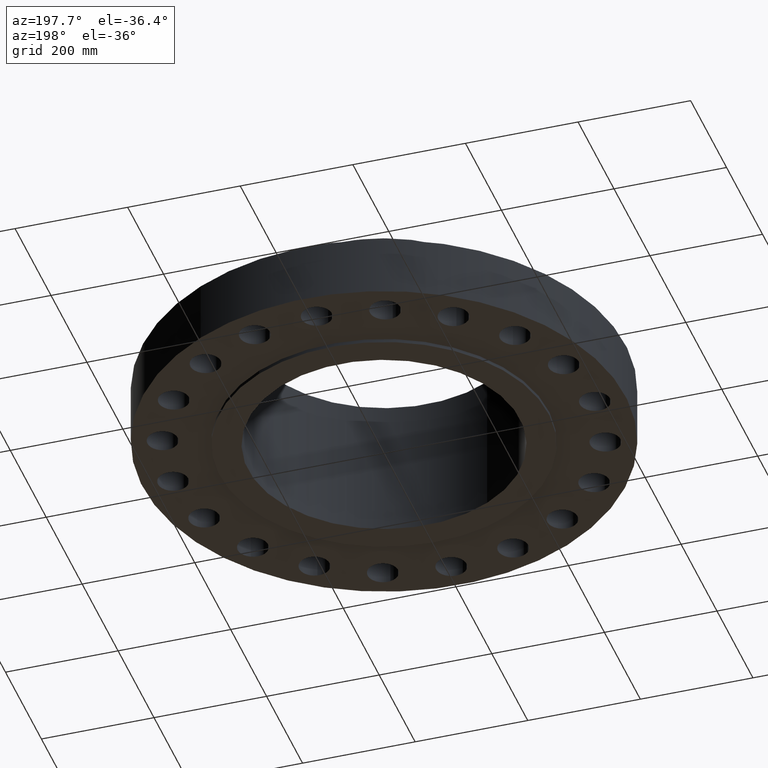
[diagram: clean part render]
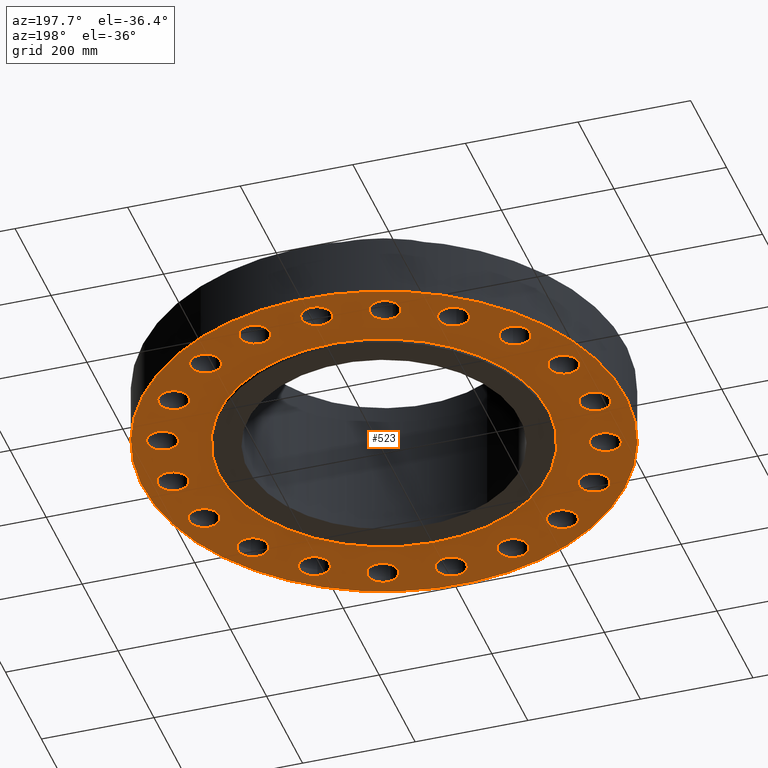
[diagram: same view with one face highlighted and labeled with its STEP entity id]
A machine part, auxiliary view. The second image highlights one B-rep face of the part: STEP entity #523.
In plain terms, the highlighted planar face has unit normal (0, 0, -1).
Its self-contained STEP definition (entity closure, byte-faithful):
#114=AXIS2_PLACEMENT_3D('Circle Axis2P3D',#112,#113,$) ;
#139=AXIS2_PLACEMENT_3D('Plane Axis2P3D',#136,#137,#138) ;
#143=AXIS2_PLACEMENT_3D('Circle Axis2P3D',#141,#142,$) ;
#152=AXIS2_PLACEMENT_3D('Circle Axis2P3D',#150,#151,$) ;
#165=AXIS2_PLACEMENT_3D('Circle Axis2P3D',#163,#164,$) ;
#174=AXIS2_PLACEMENT_3D('Circle Axis2P3D',#172,#173,$) ;
#183=AXIS2_PLACEMENT_3D('Circle Axis2P3D',#181,#182,$) ;
#192=AXIS2_PLACEMENT_3D('Circle Axis2P3D',#190,#191,$) ;
#201=AXIS2_PLACEMENT_3D('Circle Axis2P3D',#199,#200,$) ;
#210=AXIS2_PLACEMENT_3D('Circle Axis2P3D',#208,#209,$) ;
#219=AXIS2_PLACEMENT_3D('Circle Axis2P3D',#217,#218,$) ;
#228=AXIS2_PLACEMENT_3D('Circle Axis2P3D',#226,#227,$) ;
#237=AXIS2_PLACEMENT_3D('Circle Axis2P3D',#235,#236,$) ;
#246=AXIS2_PLACEMENT_3D('Circle Axis2P3D',#244,#245,$) ;
#255=AXIS2_PLACEMENT_3D('Circle Axis2P3D',#253,#254,$) ;
#264=AXIS2_PLACEMENT_3D('Circle Axis2P3D',#262,#263,$) ;
#273=AXIS2_PLACEMENT_3D('Circle Axis2P3D',#271,#272,$) ;
#282=AXIS2_PLACEMENT_3D('Circle Axis2P3D',#280,#281,$) ;
#291=AXIS2_PLACEMENT_3D('Circle Axis2P3D',#289,#290,$) ;
#300=AXIS2_PLACEMENT_3D('Circle Axis2P3D',#298,#299,$) ;
#309=AXIS2_PLACEMENT_3D('Circle Axis2P3D',#307,#308,$) ;
#318=AXIS2_PLACEMENT_3D('Circle Axis2P3D',#316,#317,$) ;
#327=AXIS2_PLACEMENT_3D('Circle Axis2P3D',#325,#326,$) ;
#336=AXIS2_PLACEMENT_3D('Circle Axis2P3D',#334,#335,$) ;
#345=AXIS2_PLACEMENT_3D('Circle Axis2P3D',#343,#344,$) ;
#354=AXIS2_PLACEMENT_3D('Circle Axis2P3D',#352,#353,$) ;
#363=AXIS2_PLACEMENT_3D('Circle Axis2P3D',#361,#362,$) ;
#372=AXIS2_PLACEMENT_3D('Circle Axis2P3D',#370,#371,$) ;
#381=AXIS2_PLACEMENT_3D('Circle Axis2P3D',#379,#380,$) ;
#390=AXIS2_PLACEMENT_3D('Circle Axis2P3D',#388,#389,$) ;
#399=AXIS2_PLACEMENT_3D('Circle Axis2P3D',#397,#398,$) ;
#408=AXIS2_PLACEMENT_3D('Circle Axis2P3D',#406,#407,$) ;
#417=AXIS2_PLACEMENT_3D('Circle Axis2P3D',#415,#416,$) ;
#426=AXIS2_PLACEMENT_3D('Circle Axis2P3D',#424,#425,$) ;
#435=AXIS2_PLACEMENT_3D('Circle Axis2P3D',#433,#434,$) ;
#444=AXIS2_PLACEMENT_3D('Circle Axis2P3D',#442,#443,$) ;
#453=AXIS2_PLACEMENT_3D('Circle Axis2P3D',#451,#452,$) ;
#462=AXIS2_PLACEMENT_3D('Circle Axis2P3D',#460,#461,$) ;
#471=AXIS2_PLACEMENT_3D('Circle Axis2P3D',#469,#470,$) ;
#480=AXIS2_PLACEMENT_3D('Circle Axis2P3D',#478,#479,$) ;
#489=AXIS2_PLACEMENT_3D('Circle Axis2P3D',#487,#488,$) ;
#498=AXIS2_PLACEMENT_3D('Circle Axis2P3D',#496,#497,$) ;
#507=AXIS2_PLACEMENT_3D('Circle Axis2P3D',#505,#506,$) ;
#516=AXIS2_PLACEMENT_3D('Circle Axis2P3D',#514,#515,$) ;
#44=CARTESIAN_POINT('Vertex',(13.8153745717,0.510588198563,0.)) ;
#50=CARTESIAN_POINT('Control Point',(13.8153745717,0.510588198614,-5.59482469104E-016)) ;
#51=CARTESIAN_POINT('Control Point',(13.8955775784,0.657398817602,1.43347800821E-012)) ;
#52=CARTESIAN_POINT('Control Point',(14.0046067827,0.788461613052,2.86751549889E-012)) ;
#53=CARTESIAN_POINT('Control Point',(14.1383624582,0.89620437463,4.30169286019E-012)) ;
#54=CARTESIAN_POINT('Control Point',(14.4409125924,1.05343894857,7.16976784155E-012)) ;
#55=CARTESIAN_POINT('Control Point',(14.7804539547,1.08459915197,1.00378428229E-011)) ;
#56=CARTESIAN_POINT('Control Point',(14.9512191372,1.06620524416,1.14720201842E-011)) ;
#57=CARTESIAN_POINT('Control Point',(15.2763360223,0.963451626043,1.43400951656E-011)) ;
#58=CARTESIAN_POINT('Control Point',(15.5384616132,0.745393217405,1.72081701469E-011)) ;
#59=CARTESIAN_POINT('Control Point',(15.6462043747,0.611637541935,1.86423475082E-011)) ;
#60=CARTESIAN_POINT('Control Point',(15.8034389487,0.309087407674,2.15104224896E-011)) ;
#61=CARTESIAN_POINT('Control Point',(15.8345991521,-0.0304539546164,2.43784974709E-011)) ;
#62=CARTESIAN_POINT('Control Point',(15.8162052443,-0.2012191371,2.58126748322E-011)) ;
#63=CARTESIAN_POINT('Control Point',(15.7648284352,-0.363777579626,2.72467123229E-011)) ;
#64=CARTESIAN_POINT('Control Point',(15.6846254285,-0.510588198614,2.86807498136E-011)) ;
#65=CARTESIAN_POINT('Vertex',(15.6846254285,-0.510588198614,2.86807498136E-011)) ;
#112=CARTESIAN_POINT('Axis2P3D Location',(14.7500000001,0.,2.86807498136E-011)) ;
#136=CARTESIAN_POINT('Axis2P3D Location',(0.,11.5,0.)) ;
#141=CARTESIAN_POINT('Axis2P3D Location',(0.,1.466739241E-011,0.)) ;
#145=CARTESIAN_POINT('Vertex',(-8.090305964,-14.809205732,1.1189649382E-015)) ;
#147=CARTESIAN_POINT('Vertex',(8.090305964,14.809205732,5.33186793055E-012)) ;
#150=CARTESIAN_POINT('Axis2P3D Location',(3.08543392061E-011,-2.18869541913E-012,0.)) ;
#163=CARTESIAN_POINT('Axis2P3D Location',(-4.36631308537E-011,1.85748179742E-012,0.)) ;
#167=CARTESIAN_POINT('Vertex',(5.51339369394,10.0921994617,5.33186793055E-012)) ;
#169=CARTESIAN_POINT('Vertex',(-5.51339369395,-10.0921994617,5.33186793055E-012)) ;
#172=CARTESIAN_POINT('Axis2P3D Location',(1.28099106126E-011,-2.89990953385E-011,0.)) ;
#181=CARTESIAN_POINT('Axis2P3D Location',(14.0280836154,-4.55800066708,0.)) ;
#185=CARTESIAN_POINT('Vertex',(13.2969824419,-3.78358729285,0.)) ;
#187=CARTESIAN_POINT('Vertex',(14.7591847889,-5.33241404124,0.)) ;
#190=CARTESIAN_POINT('Axis2P3D Location',(14.0280836154,-4.55800066704,0.)) ;
#199=CARTESIAN_POINT('Axis2P3D Location',(11.9330006671,-8.66983247135,0.)) ;
#203=CARTESIAN_POINT('Vertex',(11.4769890253,-7.70739889827,0.)) ;
#205=CARTESIAN_POINT('Vertex',(12.3890123089,-9.63226604443,0.)) ;
#208=CARTESIAN_POINT('Axis2P3D Location',(11.9330006671,-8.66983247134,0.)) ;
#217=CARTESIAN_POINT('Axis2P3D Location',(8.66983247136,-11.9330006671,0.)) ;
#221=CARTESIAN_POINT('Vertex',(8.53354795792,-10.876756599,0.)) ;
#223=CARTESIAN_POINT('Vertex',(8.80611698481,-12.9892447352,0.)) ;
#226=CARTESIAN_POINT('Axis2P3D Location',(8.66983247136,-11.9330006671,0.)) ;
#235=CARTESIAN_POINT('Axis2P3D Location',(4.55800066704,-14.0280836154,0.)) ;
#239=CARTESIAN_POINT('Vertex',(4.75478375976,-12.9814215809,0.)) ;
#241=CARTESIAN_POINT('Vertex',(4.36121757436,-15.0747456499,0.)) ;
#244=CARTESIAN_POINT('Axis2P3D Location',(4.55800066706,-14.0280836154,0.)) ;
#253=CARTESIAN_POINT('Axis2P3D Location',(6.99898581785E-012,-14.7500000001,0.)) ;
#257=CARTESIAN_POINT('Vertex',(0.510588198548,-13.8153745716,0.)) ;
#259=CARTESIAN_POINT('Vertex',(-0.510588198622,-15.6846254285,0.)) ;
#262=CARTESIAN_POINT('Axis2P3D Location',(6.99940542971E-012,-14.7500000001,0.)) ;
#271=CARTESIAN_POINT('Axis2P3D Location',(-4.55800066702,-14.0280836154,0.)) ;
#275=CARTESIAN_POINT('Vertex',(-3.78358729286,-13.2969824419,0.)) ;
#277=CARTESIAN_POINT('Vertex',(-5.33241404125,-14.7591847889,0.)) ;
#280=CARTESIAN_POINT('Axis2P3D Location',(-4.55800066702,-14.0280836154,0.)) ;
#289=CARTESIAN_POINT('Axis2P3D Location',(-8.66983247135,-11.9330006671,0.)) ;
#293=CARTESIAN_POINT('Vertex',(-7.70739889828,-11.4769890253,0.)) ;
#295=CARTESIAN_POINT('Vertex',(-9.63226604437,-12.3890123089,0.)) ;
#298=CARTESIAN_POINT('Axis2P3D Location',(-8.66983247135,-11.9330006671,0.)) ;
#307=CARTESIAN_POINT('Axis2P3D Location',(-11.9330006671,-8.66983247138,0.)) ;
#311=CARTESIAN_POINT('Vertex',(-10.876756599,-8.5335479579,0.)) ;
#313=CARTESIAN_POINT('Vertex',(-12.9892447352,-8.80611698479,0.)) ;
#316=CARTESIAN_POINT('Axis2P3D Location',(-11.9330006671,-8.66983247132,0.)) ;
#325=CARTESIAN_POINT('Axis2P3D Location',(-14.0280836154,-4.558000667,0.)) ;
#329=CARTESIAN_POINT('Vertex',(-12.9814215809,-4.75478375974,0.)) ;
#331=CARTESIAN_POINT('Vertex',(-15.0747456499,-4.36121757434,0.)) ;
#334=CARTESIAN_POINT('Axis2P3D Location',(-14.0280836154,-4.55800066708,0.)) ;
#343=CARTESIAN_POINT('Axis2P3D Location',(-14.7500000001,1.466739241E-011,0.)) ;
#347=CARTESIAN_POINT('Vertex',(-13.8153745717,-0.510588198607,0.)) ;
#349=CARTESIAN_POINT('Vertex',(-15.6846254285,0.510588198636,0.)) ;
#352=CARTESIAN_POINT('Axis2P3D Location',(-14.7500000001,1.466739241E-011,0.)) ;
#361=CARTESIAN_POINT('Axis2P3D Location',(-14.0280836154,4.55800066707,0.)) ;
#365=CARTESIAN_POINT('Vertex',(-13.2969824419,3.78358729288,0.)) ;
#367=CARTESIAN_POINT('Vertex',(-14.7591847889,5.33241404127,0.)) ;
#370=CARTESIAN_POINT('Axis2P3D Location',(-14.0280836154,4.55800066704,0.)) ;
#379=CARTESIAN_POINT('Axis2P3D Location',(-11.9330006671,8.66983247134,0.)) ;
#383=CARTESIAN_POINT('Vertex',(-11.4769890253,7.7073988983,0.)) ;
#385=CARTESIAN_POINT('Vertex',(-12.3890123089,9.63226604438,0.)) ;
#388=CARTESIAN_POINT('Axis2P3D Location',(-11.9330006671,8.66983247134,0.)) ;
#397=CARTESIAN_POINT('Axis2P3D Location',(-8.66983247136,11.9330006671,0.)) ;
#401=CARTESIAN_POINT('Vertex',(-8.53354795792,10.876756599,0.)) ;
#403=CARTESIAN_POINT('Vertex',(-8.80611698481,12.9892447352,0.)) ;
#406=CARTESIAN_POINT('Axis2P3D Location',(-8.66983247136,11.9330006671,0.)) ;
#415=CARTESIAN_POINT('Axis2P3D Location',(-4.55800066706,14.0280836154,0.)) ;
#419=CARTESIAN_POINT('Vertex',(-4.75478375976,12.9814215809,0.)) ;
#421=CARTESIAN_POINT('Vertex',(-4.36121757436,15.0747456499,0.)) ;
#424=CARTESIAN_POINT('Axis2P3D Location',(-4.55800066707,14.0280836154,0.)) ;
#433=CARTESIAN_POINT('Axis2P3D Location',(-6.99898581785E-012,14.7500000001,0.)) ;
#437=CARTESIAN_POINT('Vertex',(-0.510588198548,13.8153745717,0.)) ;
#439=CARTESIAN_POINT('Vertex',(0.510588198622,15.6846254285,0.)) ;
#442=CARTESIAN_POINT('Axis2P3D Location',(2.38546540351E-011,14.7500000001,0.)) ;
#451=CARTESIAN_POINT('Axis2P3D Location',(4.55800066706,14.0280836154,0.)) ;
#455=CARTESIAN_POINT('Vertex',(3.78358729286,13.2969824419,0.)) ;
#457=CARTESIAN_POINT('Vertex',(5.33241404125,14.7591847889,0.)) ;
#460=CARTESIAN_POINT('Axis2P3D Location',(4.55800066706,14.0280836154,0.)) ;
#469=CARTESIAN_POINT('Axis2P3D Location',(8.66983247132,11.9330006671,0.)) ;
#473=CARTESIAN_POINT('Vertex',(7.70739889828,11.4769890253,0.)) ;
#475=CARTESIAN_POINT('Vertex',(9.63226604437,12.3890123089,0.)) ;
#478=CARTESIAN_POINT('Axis2P3D Location',(8.66983247132,11.9330006671,0.)) ;
#487=CARTESIAN_POINT('Axis2P3D Location',(11.9330006671,8.66983247134,0.)) ;
#491=CARTESIAN_POINT('Vertex',(10.876756599,8.53354795793,0.)) ;
#493=CARTESIAN_POINT('Vertex',(12.9892447352,8.80611698475,0.)) ;
#496=CARTESIAN_POINT('Axis2P3D Location',(11.9330006671,8.66983247134,0.)) ;
#505=CARTESIAN_POINT('Axis2P3D Location',(14.0280836154,4.55800066704,0.)) ;
#509=CARTESIAN_POINT('Vertex',(12.9814215809,4.7547837597,0.)) ;
#511=CARTESIAN_POINT('Vertex',(15.0747456499,4.36121757437,0.)) ;
#514=CARTESIAN_POINT('Axis2P3D Location',(14.0280836154,4.55800066711,0.)) ;
#113=DIRECTION('Axis2P3D Direction',(0.,-0.,-0.0393700787402)) ;
#137=DIRECTION('Axis2P3D Direction',(0.,0.,-0.0393700787402)) ;
#138=DIRECTION('Axis2P3D XDirection',(0.0393700787402,0.,0.)) ;
#142=DIRECTION('Axis2P3D Direction',(0.,0.,-0.0393700787402)) ;
#151=DIRECTION('Axis2P3D Direction',(0.,0.,-0.0393700787402)) ;
#164=DIRECTION('Axis2P3D Direction',(0.,0.,-0.0393700787402)) ;
#173=DIRECTION('Axis2P3D Direction',(0.,0.,-0.0393700787402)) ;
#182=DIRECTION('Axis2P3D Direction',(0.,0.,-0.0393700787402)) ;
#191=DIRECTION('Axis2P3D Direction',(0.,0.,-0.0393700787402)) ;
#200=DIRECTION('Axis2P3D Direction',(0.,0.,-0.0393700787402)) ;
#209=DIRECTION('Axis2P3D Direction',(0.,0.,-0.0393700787402)) ;
#218=DIRECTION('Axis2P3D Direction',(0.,0.,-0.0393700787402)) ;
#227=DIRECTION('Axis2P3D Direction',(0.,0.,-0.0393700787402)) ;
#236=DIRECTION('Axis2P3D Direction',(0.,0.,-0.0393700787402)) ;
#245=DIRECTION('Axis2P3D Direction',(0.,0.,-0.0393700787402)) ;
#254=DIRECTION('Axis2P3D Direction',(0.,0.,-0.0393700787402)) ;
#263=DIRECTION('Axis2P3D Direction',(0.,0.,-0.0393700787402)) ;
#272=DIRECTION('Axis2P3D Direction',(0.,0.,-0.0393700787402)) ;
#281=DIRECTION('Axis2P3D Direction',(0.,0.,-0.0393700787402)) ;
#290=DIRECTION('Axis2P3D Direction',(0.,0.,-0.0393700787402)) ;
#299=DIRECTION('Axis2P3D Direction',(0.,0.,-0.0393700787402)) ;
#308=DIRECTION('Axis2P3D Direction',(0.,0.,-0.0393700787402)) ;
#317=DIRECTION('Axis2P3D Direction',(0.,0.,-0.0393700787402)) ;
#326=DIRECTION('Axis2P3D Direction',(0.,0.,-0.0393700787402)) ;
#335=DIRECTION('Axis2P3D Direction',(0.,0.,-0.0393700787402)) ;
#344=DIRECTION('Axis2P3D Direction',(0.,0.,-0.0393700787402)) ;
#353=DIRECTION('Axis2P3D Direction',(0.,0.,-0.0393700787402)) ;
#362=DIRECTION('Axis2P3D Direction',(0.,0.,-0.0393700787402)) ;
#371=DIRECTION('Axis2P3D Direction',(0.,0.,-0.0393700787402)) ;
#380=DIRECTION('Axis2P3D Direction',(0.,0.,-0.0393700787402)) ;
#389=DIRECTION('Axis2P3D Direction',(0.,0.,-0.0393700787402)) ;
#398=DIRECTION('Axis2P3D Direction',(0.,0.,-0.0393700787402)) ;
#407=DIRECTION('Axis2P3D Direction',(0.,0.,-0.0393700787402)) ;
#416=DIRECTION('Axis2P3D Direction',(0.,0.,-0.0393700787402)) ;
#425=DIRECTION('Axis2P3D Direction',(0.,0.,-0.0393700787402)) ;
#434=DIRECTION('Axis2P3D Direction',(0.,0.,-0.0393700787402)) ;
#443=DIRECTION('Axis2P3D Direction',(0.,0.,-0.0393700787402)) ;
#452=DIRECTION('Axis2P3D Direction',(0.,0.,-0.0393700787402)) ;
#461=DIRECTION('Axis2P3D Direction',(0.,0.,-0.0393700787402)) ;
#470=DIRECTION('Axis2P3D Direction',(0.,0.,-0.0393700787402)) ;
#479=DIRECTION('Axis2P3D Direction',(0.,0.,-0.0393700787402)) ;
#488=DIRECTION('Axis2P3D Direction',(0.,0.,-0.0393700787402)) ;
#497=DIRECTION('Axis2P3D Direction',(0.,0.,-0.0393700787402)) ;
#506=DIRECTION('Axis2P3D Direction',(0.,0.,-0.0393700787402)) ;
#515=DIRECTION('Axis2P3D Direction',(0.,0.,-0.0393700787402)) ;
#156=ORIENTED_EDGE('',*,*,#149,.T.) ;
#157=ORIENTED_EDGE('',*,*,#154,.T.) ;
#160=ORIENTED_EDGE('',*,*,#116,.F.) ;
#161=ORIENTED_EDGE('',*,*,#67,.F.) ;
#178=ORIENTED_EDGE('',*,*,#171,.F.) ;
#179=ORIENTED_EDGE('',*,*,#176,.F.) ;
#196=ORIENTED_EDGE('',*,*,#189,.F.) ;
#197=ORIENTED_EDGE('',*,*,#194,.F.) ;
#214=ORIENTED_EDGE('',*,*,#207,.F.) ;
#215=ORIENTED_EDGE('',*,*,#212,.F.) ;
#232=ORIENTED_EDGE('',*,*,#225,.F.) ;
#233=ORIENTED_EDGE('',*,*,#230,.F.) ;
#250=ORIENTED_EDGE('',*,*,#243,.F.) ;
#251=ORIENTED_EDGE('',*,*,#248,.F.) ;
#268=ORIENTED_EDGE('',*,*,#261,.F.) ;
#269=ORIENTED_EDGE('',*,*,#266,.F.) ;
#286=ORIENTED_EDGE('',*,*,#279,.F.) ;
#287=ORIENTED_EDGE('',*,*,#284,.F.) ;
#304=ORIENTED_EDGE('',*,*,#297,.F.) ;
#305=ORIENTED_EDGE('',*,*,#302,.F.) ;
#322=ORIENTED_EDGE('',*,*,#315,.F.) ;
#323=ORIENTED_EDGE('',*,*,#320,.F.) ;
#340=ORIENTED_EDGE('',*,*,#333,.F.) ;
#341=ORIENTED_EDGE('',*,*,#338,.F.) ;
#358=ORIENTED_EDGE('',*,*,#351,.F.) ;
#359=ORIENTED_EDGE('',*,*,#356,.F.) ;
#376=ORIENTED_EDGE('',*,*,#369,.F.) ;
#377=ORIENTED_EDGE('',*,*,#374,.F.) ;
#394=ORIENTED_EDGE('',*,*,#387,.F.) ;
#395=ORIENTED_EDGE('',*,*,#392,.F.) ;
#412=ORIENTED_EDGE('',*,*,#405,.F.) ;
#413=ORIENTED_EDGE('',*,*,#410,.F.) ;
#430=ORIENTED_EDGE('',*,*,#423,.F.) ;
#431=ORIENTED_EDGE('',*,*,#428,.F.) ;
#448=ORIENTED_EDGE('',*,*,#441,.F.) ;
#449=ORIENTED_EDGE('',*,*,#446,.F.) ;
#466=ORIENTED_EDGE('',*,*,#459,.F.) ;
#467=ORIENTED_EDGE('',*,*,#464,.F.) ;
#484=ORIENTED_EDGE('',*,*,#477,.F.) ;
#485=ORIENTED_EDGE('',*,*,#482,.F.) ;
#502=ORIENTED_EDGE('',*,*,#495,.F.) ;
#503=ORIENTED_EDGE('',*,*,#500,.F.) ;
#520=ORIENTED_EDGE('',*,*,#513,.F.) ;
#521=ORIENTED_EDGE('',*,*,#518,.F.) ;
#162=FACE_BOUND('',#159,.T.) ;
#180=FACE_BOUND('',#177,.T.) ;
#198=FACE_BOUND('',#195,.T.) ;
#216=FACE_BOUND('',#213,.T.) ;
#234=FACE_BOUND('',#231,.T.) ;
#252=FACE_BOUND('',#249,.T.) ;
#270=FACE_BOUND('',#267,.T.) ;
#288=FACE_BOUND('',#285,.T.) ;
#306=FACE_BOUND('',#303,.T.) ;
#324=FACE_BOUND('',#321,.T.) ;
#342=FACE_BOUND('',#339,.T.) ;
#360=FACE_BOUND('',#357,.T.) ;
#378=FACE_BOUND('',#375,.T.) ;
#396=FACE_BOUND('',#393,.T.) ;
#414=FACE_BOUND('',#411,.T.) ;
#432=FACE_BOUND('',#429,.T.) ;
#450=FACE_BOUND('',#447,.T.) ;
#468=FACE_BOUND('',#465,.T.) ;
#486=FACE_BOUND('',#483,.T.) ;
#504=FACE_BOUND('',#501,.T.) ;
#522=FACE_BOUND('',#519,.T.) ;
#523=ADVANCED_FACE('PartBody',(#158,#162,#180,#198,#216,#234,#252,#270,#288,#306,#324,#342,#360,#378,#396,#414,#432,#450,#468,#486,#504,#522),#140,.T.) ;
#49=B_SPLINE_CURVE_WITH_KNOTS('',5,(#50,#51,#52,#53,#54,#55,#56,#57,#58,#59,#60,#61,#62,#63,#64),.UNSPECIFIED.,.F.,.U.,(6,3,3,3,6),(-42.4916114361,-21.2458057181,0.,21.2458057181,42.4916114361),.UNSPECIFIED.) ;
#115=CIRCLE('generated circle',#114,1.065) ;
#144=CIRCLE('generated circle',#143,16.8750000001) ;
#153=CIRCLE('generated circle',#152,16.8750000001) ;
#166=CIRCLE('generated circle',#165,11.5) ;
#175=CIRCLE('generated circle',#174,11.5) ;
#184=CIRCLE('generated circle',#183,1.06500000001) ;
#193=CIRCLE('generated circle',#192,1.06500000001) ;
#202=CIRCLE('generated circle',#201,1.06500000001) ;
#211=CIRCLE('generated circle',#210,1.06500000001) ;
#220=CIRCLE('generated circle',#219,1.06500000001) ;
#229=CIRCLE('generated circle',#228,1.06500000001) ;
#238=CIRCLE('generated circle',#237,1.06499999999) ;
#247=CIRCLE('generated circle',#246,1.06499999999) ;
#256=CIRCLE('generated circle',#255,1.065) ;
#265=CIRCLE('generated circle',#264,1.065) ;
#274=CIRCLE('generated circle',#273,1.06500000001) ;
#283=CIRCLE('generated circle',#282,1.06500000001) ;
#292=CIRCLE('generated circle',#291,1.06499999999) ;
#301=CIRCLE('generated circle',#300,1.06499999999) ;
#310=CIRCLE('generated circle',#309,1.06499999998) ;
#319=CIRCLE('generated circle',#318,1.06499999998) ;
#328=CIRCLE('generated circle',#327,1.06500000003) ;
#337=CIRCLE('generated circle',#336,1.06500000003) ;
#346=CIRCLE('generated circle',#345,1.06500000002) ;
#355=CIRCLE('generated circle',#354,1.06500000002) ;
#364=CIRCLE('generated circle',#363,1.06500000001) ;
#373=CIRCLE('generated circle',#372,1.06500000001) ;
#382=CIRCLE('generated circle',#381,1.06499999998) ;
#391=CIRCLE('generated circle',#390,1.06499999998) ;
#400=CIRCLE('generated circle',#399,1.06500000001) ;
#409=CIRCLE('generated circle',#408,1.06500000001) ;
#418=CIRCLE('generated circle',#417,1.06499999999) ;
#427=CIRCLE('generated circle',#426,1.06499999999) ;
#436=CIRCLE('generated circle',#435,1.065) ;
#445=CIRCLE('generated circle',#444,1.065) ;
#454=CIRCLE('generated circle',#453,1.06500000001) ;
#463=CIRCLE('generated circle',#462,1.06500000001) ;
#472=CIRCLE('generated circle',#471,1.06499999999) ;
#481=CIRCLE('generated circle',#480,1.06499999999) ;
#490=CIRCLE('generated circle',#489,1.06499999997) ;
#499=CIRCLE('generated circle',#498,1.06499999997) ;
#508=CIRCLE('generated circle',#507,1.06500000002) ;
#517=CIRCLE('generated circle',#516,1.06500000002) ;
#67=EDGE_CURVE('',#45,#66,#49,.T.) ;
#116=EDGE_CURVE('',#66,#45,#115,.T.) ;
#149=EDGE_CURVE('',#146,#148,#144,.T.) ;
#154=EDGE_CURVE('',#148,#146,#153,.T.) ;
#171=EDGE_CURVE('',#168,#170,#166,.T.) ;
#176=EDGE_CURVE('',#170,#168,#175,.T.) ;
#189=EDGE_CURVE('',#186,#188,#184,.T.) ;
#194=EDGE_CURVE('',#188,#186,#193,.T.) ;
#207=EDGE_CURVE('',#204,#206,#202,.T.) ;
#212=EDGE_CURVE('',#206,#204,#211,.T.) ;
#225=EDGE_CURVE('',#222,#224,#220,.T.) ;
#230=EDGE_CURVE('',#224,#222,#229,.T.) ;
#243=EDGE_CURVE('',#240,#242,#238,.T.) ;
#248=EDGE_CURVE('',#242,#240,#247,.T.) ;
#261=EDGE_CURVE('',#258,#260,#256,.T.) ;
#266=EDGE_CURVE('',#260,#258,#265,.T.) ;
#279=EDGE_CURVE('',#276,#278,#274,.T.) ;
#284=EDGE_CURVE('',#278,#276,#283,.T.) ;
#297=EDGE_CURVE('',#294,#296,#292,.T.) ;
#302=EDGE_CURVE('',#296,#294,#301,.T.) ;
#315=EDGE_CURVE('',#312,#314,#310,.T.) ;
#320=EDGE_CURVE('',#314,#312,#319,.T.) ;
#333=EDGE_CURVE('',#330,#332,#328,.T.) ;
#338=EDGE_CURVE('',#332,#330,#337,.T.) ;
#351=EDGE_CURVE('',#348,#350,#346,.T.) ;
#356=EDGE_CURVE('',#350,#348,#355,.T.) ;
#369=EDGE_CURVE('',#366,#368,#364,.T.) ;
#374=EDGE_CURVE('',#368,#366,#373,.T.) ;
#387=EDGE_CURVE('',#384,#386,#382,.T.) ;
#392=EDGE_CURVE('',#386,#384,#391,.T.) ;
#405=EDGE_CURVE('',#402,#404,#400,.T.) ;
#410=EDGE_CURVE('',#404,#402,#409,.T.) ;
#423=EDGE_CURVE('',#420,#422,#418,.T.) ;
#428=EDGE_CURVE('',#422,#420,#427,.T.) ;
#441=EDGE_CURVE('',#438,#440,#436,.T.) ;
#446=EDGE_CURVE('',#440,#438,#445,.T.) ;
#459=EDGE_CURVE('',#456,#458,#454,.T.) ;
#464=EDGE_CURVE('',#458,#456,#463,.T.) ;
#477=EDGE_CURVE('',#474,#476,#472,.T.) ;
#482=EDGE_CURVE('',#476,#474,#481,.T.) ;
#495=EDGE_CURVE('',#492,#494,#490,.T.) ;
#500=EDGE_CURVE('',#494,#492,#499,.T.) ;
#513=EDGE_CURVE('',#510,#512,#508,.T.) ;
#518=EDGE_CURVE('',#512,#510,#517,.T.) ;
#155=EDGE_LOOP('',(#156,#157)) ;
#159=EDGE_LOOP('',(#160,#161)) ;
#177=EDGE_LOOP('',(#178,#179)) ;
#195=EDGE_LOOP('',(#196,#197)) ;
#213=EDGE_LOOP('',(#214,#215)) ;
#231=EDGE_LOOP('',(#232,#233)) ;
#249=EDGE_LOOP('',(#250,#251)) ;
#267=EDGE_LOOP('',(#268,#269)) ;
#285=EDGE_LOOP('',(#286,#287)) ;
#303=EDGE_LOOP('',(#304,#305)) ;
#321=EDGE_LOOP('',(#322,#323)) ;
#339=EDGE_LOOP('',(#340,#341)) ;
#357=EDGE_LOOP('',(#358,#359)) ;
#375=EDGE_LOOP('',(#376,#377)) ;
#393=EDGE_LOOP('',(#394,#395)) ;
#411=EDGE_LOOP('',(#412,#413)) ;
#429=EDGE_LOOP('',(#430,#431)) ;
#447=EDGE_LOOP('',(#448,#449)) ;
#465=EDGE_LOOP('',(#466,#467)) ;
#483=EDGE_LOOP('',(#484,#485)) ;
#501=EDGE_LOOP('',(#502,#503)) ;
#519=EDGE_LOOP('',(#520,#521)) ;
#158=FACE_OUTER_BOUND('',#155,.T.) ;
#140=PLANE('',#139) ;
#45=VERTEX_POINT('',#44) ;
#66=VERTEX_POINT('',#65) ;
#146=VERTEX_POINT('',#145) ;
#148=VERTEX_POINT('',#147) ;
#168=VERTEX_POINT('',#167) ;
#170=VERTEX_POINT('',#169) ;
#186=VERTEX_POINT('',#185) ;
#188=VERTEX_POINT('',#187) ;
#204=VERTEX_POINT('',#203) ;
#206=VERTEX_POINT('',#205) ;
#222=VERTEX_POINT('',#221) ;
#224=VERTEX_POINT('',#223) ;
#240=VERTEX_POINT('',#239) ;
#242=VERTEX_POINT('',#241) ;
#258=VERTEX_POINT('',#257) ;
#260=VERTEX_POINT('',#259) ;
#276=VERTEX_POINT('',#275) ;
#278=VERTEX_POINT('',#277) ;
#294=VERTEX_POINT('',#293) ;
#296=VERTEX_POINT('',#295) ;
#312=VERTEX_POINT('',#311) ;
#314=VERTEX_POINT('',#313) ;
#330=VERTEX_POINT('',#329) ;
#332=VERTEX_POINT('',#331) ;
#348=VERTEX_POINT('',#347) ;
#350=VERTEX_POINT('',#349) ;
#366=VERTEX_POINT('',#365) ;
#368=VERTEX_POINT('',#367) ;
#384=VERTEX_POINT('',#383) ;
#386=VERTEX_POINT('',#385) ;
#402=VERTEX_POINT('',#401) ;
#404=VERTEX_POINT('',#403) ;
#420=VERTEX_POINT('',#419) ;
#422=VERTEX_POINT('',#421) ;
#438=VERTEX_POINT('',#437) ;
#440=VERTEX_POINT('',#439) ;
#456=VERTEX_POINT('',#455) ;
#458=VERTEX_POINT('',#457) ;
#474=VERTEX_POINT('',#473) ;
#476=VERTEX_POINT('',#475) ;
#492=VERTEX_POINT('',#491) ;
#494=VERTEX_POINT('',#493) ;
#510=VERTEX_POINT('',#509) ;
#512=VERTEX_POINT('',#511) ;